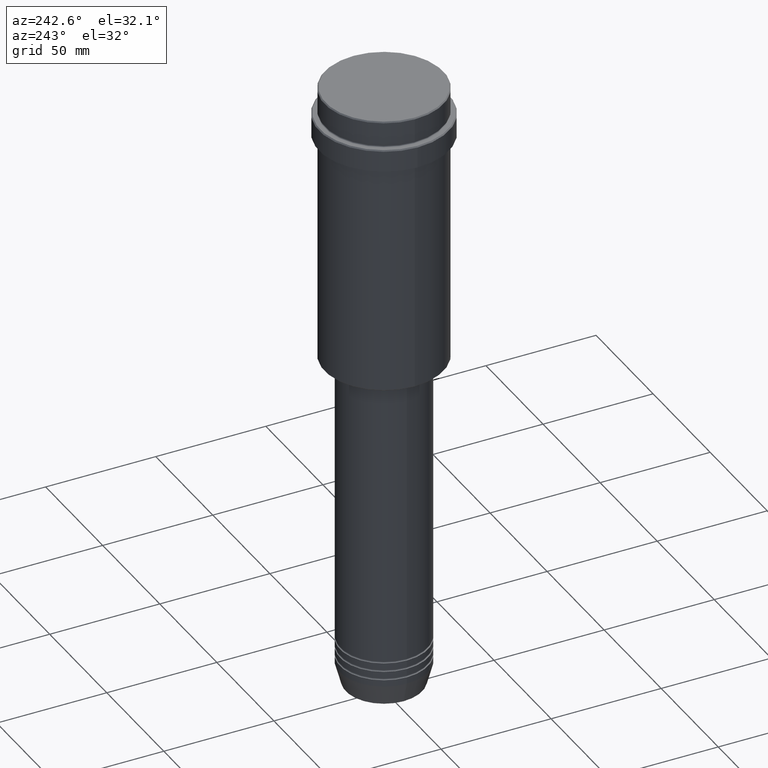
[diagram: clean part render]
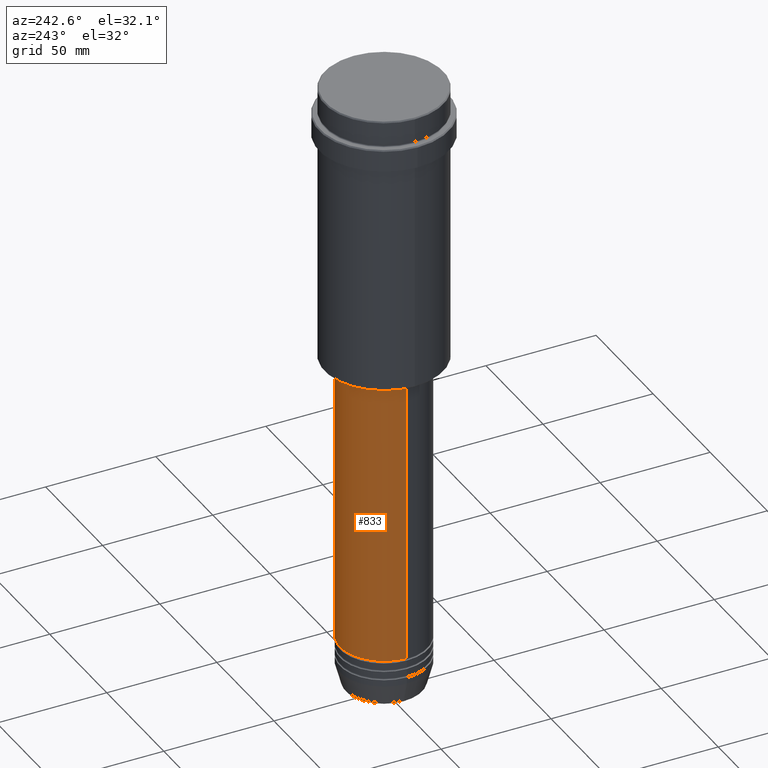
[diagram: same view with one face highlighted and labeled with its STEP entity id]
A machine part, auxiliary view. The second image highlights one B-rep face of the part: STEP entity #833.
In plain terms, the highlighted cylindrical surface (partial cylindrical patch) has radius 20 mm, axis along (-0, -0, 1).
Its self-contained STEP definition (entity closure, byte-faithful):
#47 = CARTESIAN_POINT ( 'NONE',  ( -20.00000000000000000, 2.449293598294706513E-15, -129.0000000000000284 ) ) ;
#50 = DIRECTION ( 'NONE',  ( -0.000000000000000000, -0.000000000000000000, 1.000000000000000000 ) ) ;
#157 = CARTESIAN_POINT ( 'NONE',  ( -20.00000000000000000, 2.449293598294706513E-15, 0.000000000000000000 ) ) ;
#161 = FACE_OUTER_BOUND ( 'NONE', #427, .T. ) ;
#191 = VECTOR ( 'NONE', #50, 1000.000000000000000 ) ;
#368 = LINE ( 'NONE', #925, #710 ) ;
#375 = CARTESIAN_POINT ( 'NONE',  ( -20.00000000000000000, 2.449293598294706513E-15, -260.9999999999998863 ) ) ;
#398 = DIRECTION ( 'NONE',  ( 1.000000000000000000, 0.000000000000000000, 0.000000000000000000 ) ) ;
#412 = CARTESIAN_POINT ( 'NONE',  ( 20.00000000000000000, 0.000000000000000000, -260.9999999999998863 ) ) ;
#420 = CARTESIAN_POINT ( 'NONE',  ( 0.000000000000000000, 0.000000000000000000, -260.9999999999998863 ) ) ;
#427 = EDGE_LOOP ( 'NONE', ( #1334, #1093, #1341, #746 ) ) ;
#462 = AXIS2_PLACEMENT_3D ( 'NONE', #420, #1057, #1181 ) ;
#583 = VERTEX_POINT ( 'NONE', #375 ) ;
#595 = DIRECTION ( 'NONE',  ( -0.000000000000000000, -0.000000000000000000, 1.000000000000000000 ) ) ;
#610 = CARTESIAN_POINT ( 'NONE',  ( 0.000000000000000000, 0.000000000000000000, 0.000000000000000000 ) ) ;
#617 = DIRECTION ( 'NONE',  ( -0.000000000000000000, -0.000000000000000000, 1.000000000000000000 ) ) ;
#708 = AXIS2_PLACEMENT_3D ( 'NONE', #610, #617, #398 ) ;
#710 = VECTOR ( 'NONE', #595, 1000.000000000000000 ) ;
#715 = CARTESIAN_POINT ( 'NONE',  ( 0.000000000000000000, 0.000000000000000000, -129.0000000000000284 ) ) ;
#746 = ORIENTED_EDGE ( 'NONE', *, *, #1102, .F. ) ;
#799 = CIRCLE ( 'NONE', #938, 20.00000000000000000 ) ;
#829 = CYLINDRICAL_SURFACE ( 'NONE', #708, 20.00000000000000000 ) ;
#833 = ADVANCED_FACE ( 'NONE', ( #161 ), #829, .T. ) ;
#923 = EDGE_CURVE ( 'NONE', #583, #1144, #1033, .T. ) ;
#925 = CARTESIAN_POINT ( 'NONE',  ( 20.00000000000000000, 0.000000000000000000, 0.000000000000000000 ) ) ;
#938 = AXIS2_PLACEMENT_3D ( 'NONE', #715, #1028, #1267 ) ;
#1028 = DIRECTION ( 'NONE',  ( -0.000000000000000000, -0.000000000000000000, 1.000000000000000000 ) ) ;
#1033 = LINE ( 'NONE', #157, #191 ) ;
#1057 = DIRECTION ( 'NONE',  ( -0.000000000000000000, -0.000000000000000000, 1.000000000000000000 ) ) ;
#1079 = VERTEX_POINT ( 'NONE', #1292 ) ;
#1088 = EDGE_CURVE ( 'NONE', #1079, #1144, #799, .T. ) ;
#1093 = ORIENTED_EDGE ( 'NONE', *, *, #923, .T. ) ;
#1102 = EDGE_CURVE ( 'NONE', #1298, #1079, #368, .T. ) ;
#1144 = VERTEX_POINT ( 'NONE', #47 ) ;
#1181 = DIRECTION ( 'NONE',  ( 1.000000000000000000, 0.000000000000000000, 0.000000000000000000 ) ) ;
#1217 = CIRCLE ( 'NONE', #462, 20.00000000000000000 ) ;
#1267 = DIRECTION ( 'NONE',  ( 1.000000000000000000, 0.000000000000000000, 0.000000000000000000 ) ) ;
#1292 = CARTESIAN_POINT ( 'NONE',  ( 20.00000000000000000, 0.000000000000000000, -129.0000000000000284 ) ) ;
#1295 = EDGE_CURVE ( 'NONE', #1298, #583, #1217, .T. ) ;
#1298 = VERTEX_POINT ( 'NONE', #412 ) ;
#1334 = ORIENTED_EDGE ( 'NONE', *, *, #1295, .T. ) ;
#1341 = ORIENTED_EDGE ( 'NONE', *, *, #1088, .F. ) ;